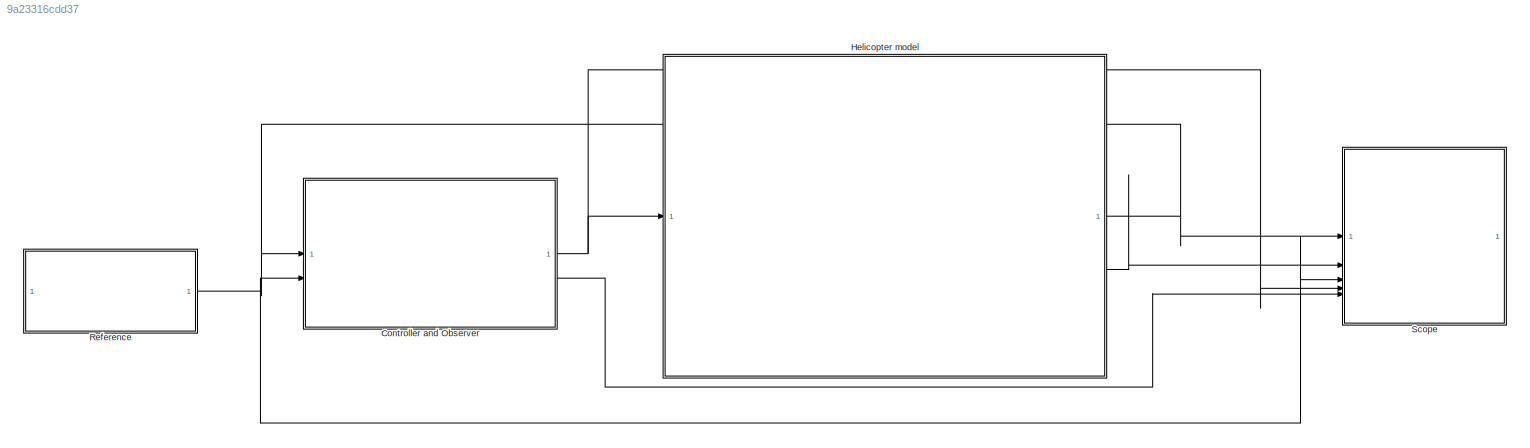
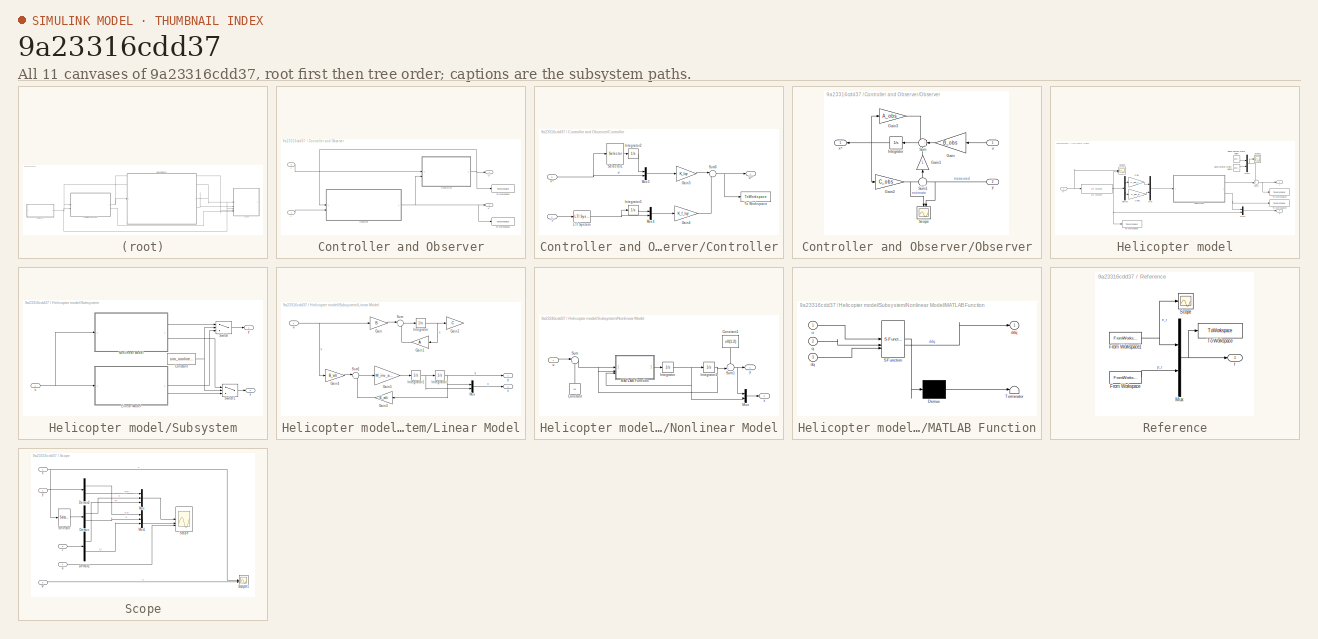
[diagram: thumbnail index - all 11 canvases of the model, root first then tree order]
MODEL slx_9a23316cdd37
KIND model
CONFIG AbsTol = auto
CONFIG EnableMultiTasking = off
CONFIG FixedStep = auto
CONFIG MaxStep = 0.01
CONFIG MinStep = auto
CONFIG RelTol = 1e-5
CONFIG SampleTimeConstraint = Unconstrained
CONFIG SolverName = VariableStepAuto
CONFIG StartTime = 0.0
CONFIG StopTime = 20
BLOCK [SubSystem] Controller and Observer
BLOCK [SubSystem] Controller and Observer/Controller
BLOCK [Gain] Controller and Observer/Controller/Gain3
  Gain = K_lqr
  Multiplication = Matrix(K*u)
BLOCK [Gain] Controller and Observer/Controller/Gain4
  Gain = K_f_lqr
  Multiplication = Matrix(K*u)
BLOCK [Integrator] Controller and Observer/Controller/Integrator2
BLOCK [Integrator] Controller and Observer/Controller/Integrator3
BLOCK [Reference] Controller and Observer/Controller/LTI System  REF=cstblocks/LTI System
  SourceBlock = cstblocks/LTI System
  SourceType = LTI Block
BLOCK [Mux] Controller and Observer/Controller/Mux3
  DisplayOption = bar
  Inputs = 2
BLOCK [Mux] Controller and Observer/Controller/Mux4
  DisplayOption = bar
  Inputs = 2
BLOCK [Selector] Controller and Observer/Controller/Selector1
  IndexOptions = Index vector (dialog)
  Indices = [1 2]
  InputPortWidth = 6
  OutputSizes = 1
BLOCK [Sum] Controller and Observer/Controller/Sum3
  Inputs = |-+
BLOCK [ToWorkspace] Controller and Observer/Controller/To Workspace
  FixptAsFi = on
  MaxDataPoints = inf
  SampleTime = -1
  SaveFormat = Timeseries
  VariableName = u
BLOCK [Inport] Controller and Observer/Controller/r
BLOCK [Outport] Controller and Observer/Controller/u~
BLOCK [Inport] Controller and Observer/Controller/x^
  Port = 2
BLOCK [SubSystem] Controller and Observer/Observer
BLOCK [Gain] Controller and Observer/Observer/Gain
  Gain = B_obs
  Multiplication = Matrix(K*u)
  NameLocation = top
BLOCK [Gain] Controller and Observer/Observer/Gain1
  Gain = L
  Multiplication = Matrix(K*u)
  NameLocation = right
BLOCK [Gain] Controller and Observer/Observer/Gain2
  Gain = C_obs
  Multiplication = Matrix(K*u)
BLOCK [Gain] Controller and Observer/Observer/Gain3
  Gain = A_obs
  Multiplication = Matrix(K*u)
BLOCK [Integrator] Controller and Observer/Observer/Integrator
  NameLocation = top
BLOCK [Scope] Controller and Observer/Observer/Scope
  Floating = off
  NameLocation = left
  NumInputPorts = 2
  ScopeSpecificationString = Simulink.scopes.TimeScopeBlockCfg('CurrentConfiguration', extmgr.ConfigurationSet(extmgr.Configuration('Core','General UI',true),extmgr.Configuration('Core','Source UI',true),extmgr.Configuration('Sources','WiredSimulink',true,'DataLoggingVariableName','ScopeData1'),extmgr.Configuration('Visuals','Time Domain',true,'SerializedDisplays',{struct('MinYLimReal','-0.13585','MaxYLimReal','1.19858','YLab...<+1696ch>
BLOCK [Sum] Controller and Observer/Observer/Sum
  Inputs = +++
  NameLocation = top
BLOCK [Sum] Controller and Observer/Observer/Sum1
  Inputs = -|+
  NameLocation = right
BLOCK [Inport] Controller and Observer/Observer/u
  NameLocation = top
BLOCK [Outport] Controller and Observer/Observer/x^
  NameLocation = top
BLOCK [Inport] Controller and Observer/Observer/y
  NameLocation = top
  Port = 2
BLOCK [ToWorkspace] Controller and Observer/To Workspace
  FixptAsFi = on
  MaxDataPoints = inf
  SampleTime = -1
  SaveFormat = Timeseries
  VariableName = u_input
BLOCK [ToWorkspace] Controller and Observer/To Workspace1
  FixptAsFi = on
  MaxDataPoints = inf
  SampleTime = -1
  SaveFormat = Timeseries
  VariableName = x_est
BLOCK [Inport] Controller and Observer/r
  Port = 2
BLOCK [Outport] Controller and Observer/u~
BLOCK [Outport] Controller and Observer/x^
  Port = 2
BLOCK [Inport] Controller and Observer/y
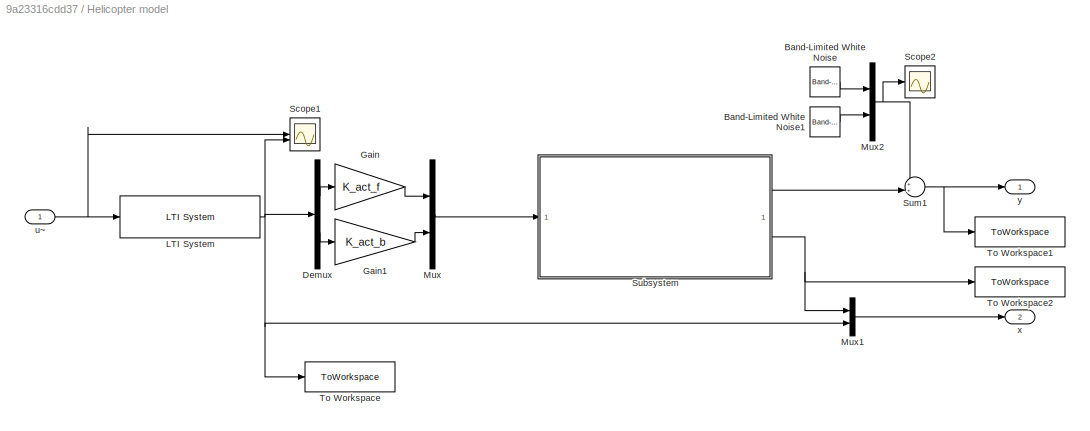
BLOCK [SubSystem] Helicopter model
BLOCK [Reference] Helicopter model/Band-Limited White Noise  REF=simulink/Sources/Band-Limited
White Noise
  SourceBlock = simulink/Sources/Band-Limited\nWhite Noise
  SourceType = Band-Limited White Noise.
BLOCK [Reference] Helicopter model/Band-Limited White Noise1  REF=simulink/Sources/Band-Limited
White Noise
  SourceBlock = simulink/Sources/Band-Limited\nWhite Noise
  SourceType = Band-Limited White Noise.
BLOCK [Demux] Helicopter model/Demux
  Outputs = 2
BLOCK [Gain] Helicopter model/Gain
  Gain = K_act_f
BLOCK [Gain] Helicopter model/Gain1
  Gain = K_act_b
BLOCK [Reference] Helicopter model/LTI System  REF=cstblocks/LTI System
  SourceBlock = cstblocks/LTI System
  SourceType = LTI Block
BLOCK [Mux] Helicopter model/Mux
  DisplayOption = bar
  Inputs = 2
BLOCK [Mux] Helicopter model/Mux1
  DisplayOption = bar
  Inputs = 2
BLOCK [Mux] Helicopter model/Mux2
  DisplayOption = bar
  Inputs = 2
BLOCK [Scope] Helicopter model/Scope1
  Floating = off
  NumInputPorts = 2
  ScopeSpecificationString = Simulink.scopes.TimeScopeBlockCfg('CurrentConfiguration', extmgr.ConfigurationSet(extmgr.Configuration('Core','General UI',true),extmgr.Configuration('Core','Source UI',true),extmgr.Configuration('Sources','WiredSimulink',true,'DataLoggingVariableName','ScopeData2'),extmgr.Configuration('Visuals','Time Domain',true,'SerializedDisplays',{struct('MinYLimReal','-38.56259','MaxYLimReal','41.24382','YL...<+1527ch>
BLOCK [Scope] Helicopter model/Scope2
  Floating = off
  NumInputPorts = 1
  ScopeSpecificationString = Simulink.scopes.TimeScopeBlockCfg('CurrentConfiguration', extmgr.ConfigurationSet(extmgr.Configuration('Core','General UI',true),extmgr.Configuration('Core','Source UI',true),extmgr.Configuration('Sources','WiredSimulink',true,'DataLoggingVariableName','ScopeData4'),extmgr.Configuration('Visuals','Time Domain',true,'SerializedDisplays',{struct('MinYLimReal','-0.15167','MaxYLimReal','0.15543','YLab...<+1508ch>
BLOCK [SubSystem] Helicopter model/Subsystem
BLOCK [Constant] Helicopter model/Subsystem/Constant
  Value = sim_nonlinear
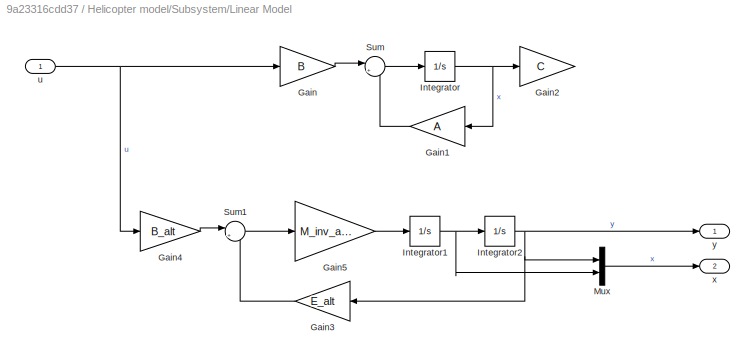
BLOCK [SubSystem] Helicopter model/Subsystem/Linear Model
BLOCK [Gain] Helicopter model/Subsystem/Linear Model/Gain
  Commented = on
  Gain = B
  Multiplication = Matrix(K*u)
BLOCK [Gain] Helicopter model/Subsystem/Linear Model/Gain1
  Commented = on
  Gain = A
  Multiplication = Matrix(K*u)
  NameLocation = top
BLOCK [Gain] Helicopter model/Subsystem/Linear Model/Gain2
  Commented = on
  Gain = C
  Multiplication = Matrix(K*u)
BLOCK [Gain] Helicopter model/Subsystem/Linear Model/Gain3
  Gain = E_alt
  Multiplication = Matrix(K*u)
  NameLocation = top
BLOCK [Gain] Helicopter model/Subsystem/Linear Model/Gain4
  Gain = B_alt
  Multiplication = Matrix(K*u)
BLOCK [Gain] Helicopter model/Subsystem/Linear Model/Gain5
  Gain = M_inv_alt
  Multiplication = Matrix(K*u)
BLOCK [Integrator] Helicopter model/Subsystem/Linear Model/Integrator
  Commented = on
BLOCK [Integrator] Helicopter model/Subsystem/Linear Model/Integrator1
BLOCK [Integrator] Helicopter model/Subsystem/Linear Model/Integrator2
BLOCK [Mux] Helicopter model/Subsystem/Linear Model/Mux
  DisplayOption = bar
  Inputs = 2
BLOCK [Sum] Helicopter model/Subsystem/Linear Model/Sum
  Commented = on
  Inputs = |++
BLOCK [Sum] Helicopter model/Subsystem/Linear Model/Sum1
  Inputs = |++
BLOCK [Inport] Helicopter model/Subsystem/Linear Model/u
BLOCK [Outport] Helicopter model/Subsystem/Linear Model/x
  Port = 2
BLOCK [Outport] Helicopter model/Subsystem/Linear Model/y
BLOCK [SubSystem] Helicopter model/Subsystem/Nonlinear Model
BLOCK [Constant] Helicopter model/Subsystem/Nonlinear Model/Constant
  NameLocation = right
  Value = u0
BLOCK [Constant] Helicopter model/Subsystem/Nonlinear Model/Constant1
  NameLocation = left
  Value = x0(1:2)
BLOCK [Integrator] Helicopter model/Subsystem/Nonlinear Model/Integrator
BLOCK [Integrator] Helicopter model/Subsystem/Nonlinear Model/Integrator1
  InitialCondition = x0(1:2)
BLOCK [SubSystem] Helicopter model/Subsystem/Nonlinear Model/MATLAB Function
  ErrorFcn = Stateflow.Translate.translate
  PermitHierarchicalResolution = ExplicitOnly
  SFBlockType = MATLAB Function
  TreatAsAtomicUnit = on
BLOCK [Demux] Helicopter model/Subsystem/Nonlinear Model/MATLAB Function/ Demux 
  Outputs = 1
BLOCK [S-Function] Helicopter model/Subsystem/Nonlinear Model/MATLAB Function/ SFunction 
  EnableBusSupport = on
  FunctionName = sf_sfun
  PortCounts = [3 2]
  SFcnIsStateOwnerBlock = off
  SFunctionDeploymentMode = off
  Tag = Stateflow S-Function 2
BLOCK [Terminator] Helicopter model/Subsystem/Nonlinear Model/MATLAB Function/ Terminator 
BLOCK [Outport] Helicopter model/Subsystem/Nonlinear Model/MATLAB Function/ddq
BLOCK [Inport] Helicopter model/Subsystem/Nonlinear Model/MATLAB Function/dq
  Port = 3
BLOCK [Inport] Helicopter model/Subsystem/Nonlinear Model/MATLAB Function/q
  Port = 2
BLOCK [Inport] Helicopter model/Subsystem/Nonlinear Model/MATLAB Function/u
BLOCK [Mux] Helicopter model/Subsystem/Nonlinear Model/Mux
  DisplayOption = bar
  Inputs = 2
BLOCK [Sum] Helicopter model/Subsystem/Nonlinear Model/Sum
  Inputs = |++
BLOCK [Sum] Helicopter model/Subsystem/Nonlinear Model/Sum1
  Inputs = -+|
BLOCK [Inport] Helicopter model/Subsystem/Nonlinear Model/u
BLOCK [Outport] Helicopter model/Subsystem/Nonlinear Model/x
  Port = 2
BLOCK [Outport] Helicopter model/Subsystem/Nonlinear Model/y
BLOCK [Switch] Helicopter model/Subsystem/Switch
  Criteria = u2 > Threshold
  InputSameDT = off
  SaturateOnIntegerOverflow = off
BLOCK [Switch] Helicopter model/Subsystem/Switch1
  Criteria = u2 > Threshold
  InputSameDT = off
  SaturateOnIntegerOverflow = off
BLOCK [Inport] Helicopter model/Subsystem/u
BLOCK [Outport] Helicopter model/Subsystem/x
  Port = 2
BLOCK [Outport] Helicopter model/Subsystem/y
BLOCK [Sum] Helicopter model/Sum1
  Inputs = ++|
BLOCK [ToWorkspace] Helicopter model/To Workspace
  FixptAsFi = on
  MaxDataPoints = inf
  SampleTime = -1
  SaveFormat = Timeseries
  VariableName = u_state
BLOCK [ToWorkspace] Helicopter model/To Workspace1
  FixptAsFi = on
  MaxDataPoints = inf
  SampleTime = -1
  SaveFormat = Timeseries
  VariableName = y
BLOCK [ToWorkspace] Helicopter model/To Workspace2
  FixptAsFi = on
  MaxDataPoints = inf
  SampleTime = -1
  SaveFormat = Timeseries
  VariableName = x_drone
BLOCK [Inport] Helicopter model/u~
BLOCK [Outport] Helicopter model/x
  Port = 2
BLOCK [Outport] Helicopter model/y
BLOCK [SubSystem] Reference
BLOCK [FromWorkspace] Reference/From Workspace
  VariableName = p_timeseries
BLOCK [FromWorkspace] Reference/From Workspace1
  VariableName = e_timeseries
BLOCK [Mux] Reference/Mux
  DisplayOption = bar
  Inputs = 2
BLOCK [Scope] Reference/Scope
  Floating = off
  NumInputPorts = 1
  ScopeSpecificationString = Simulink.scopes.TimeScopeBlockCfg('CurrentConfiguration', extmgr.ConfigurationSet(extmgr.Configuration('Core','General UI',true),extmgr.Configuration('Core','Source UI',true),extmgr.Configuration('Sources','WiredSimulink',true,'DataLoggingVariableName','ScopeData1'),extmgr.Configuration('Visuals','Time Domain',true,'SerializedDisplays',{struct('MinYLimReal','-1.00000','MaxYLimReal','1.00000','YLab...<+1392ch>
BLOCK [ToWorkspace] Reference/To Workspace
  FixptAsFi = on
  MaxDataPoints = inf
  SampleTime = -1
  SaveFormat = Timeseries
  VariableName = r
BLOCK [Outport] Reference/r
BLOCK [SubSystem] Scope
BLOCK [Demux] Scope/Demux
  Outputs = 2
BLOCK [Demux] Scope/Demux1
  Outputs = 2
BLOCK [Demux] Scope/Demux2
  Outputs = 2
BLOCK [Mux] Scope/Mux
  DisplayOption = bar
  Inputs = 3
BLOCK [Mux] Scope/Mux1
  DisplayOption = bar
  Inputs = 3
BLOCK [Scope] Scope/Scope
  Floating = off
  NumInputPorts = 3
  ScopeSpecificationString = Simulink.scopes.TimeScopeBlockCfg('CurrentConfiguration', extmgr.ConfigurationSet(extmgr.Configuration('Core','General UI',true),extmgr.Configuration('Core','Source UI',true),extmgr.Configuration('Sources','WiredSimulink',true),extmgr.Configuration('Visuals','Time Domain',true,'SerializedDisplays',{struct('MinYLimReal','-0.23094','MaxYLimReal','1.38001','YLabelReal','','MinYLimMag','0.00000','MaxY...<+3496ch>
BLOCK [Scope] Scope/Scope1
  Floating = off
  NumInputPorts = 2
  ScopeSpecificationString = Simulink.scopes.TimeScopeBlockCfg('CurrentConfiguration', extmgr.ConfigurationSet(extmgr.Configuration('Core','General UI',true),extmgr.Configuration('Core','Source UI',true),extmgr.Configuration('Sources','WiredSimulink',true,'DataLoggingVariableName','ScopeData3'),extmgr.Configuration('Visuals','Time Domain',true,'SerializedDisplays',{struct('MinYLimReal','-7.32871','MaxYLimReal','12.25849','YLa...<+1777ch>
BLOCK [Selector] Scope/Selector
  IndexOptions = Index vector (dialog)
  Indices = [1 2]
  InputPortWidth = 6
  OutputSizes = 1
BLOCK [Inport] Scope/r
  Port = 3
BLOCK [Inport] Scope/u
  Port = 4
BLOCK [Inport] Scope/x
  Port = 2
BLOCK [Inport] Scope/x^
  Port = 5
BLOCK [Inport] Scope/y
LINE Controller and Observer/Controller/Gain3:1 -> Controller and Observer/Controller/Sum3:1
LINE Controller and Observer/Controller/Gain4:1 -> Controller and Observer/Controller/Sum3:2
LINE Controller and Observer/Controller/Integrator2:1 -> Controller and Observer/Controller/Mux3:1
LINE Controller and Observer/Controller/Integrator3:1 -> Controller and Observer/Controller/Mux4:1
NET Controller and Observer/Controller/LTI System:1 -> Controller and Observer/Controller/Integrator3:1, Controller and Observer/Controller/Mux4:2
LINE Controller and Observer/Controller/Mux3:1 -> Controller and Observer/Controller/Gain3:1
LINE Controller and Observer/Controller/Mux4:1 -> Controller and Observer/Controller/Gain4:1
LINE Controller and Observer/Controller/Selector1:1 -> Controller and Observer/Controller/Integrator2:1
NET Controller and Observer/Controller/Sum3:1 -> Controller and Observer/Controller/To Workspace:1, Controller and Observer/Controller/u~:1
LINE Controller and Observer/Controller/r:1 -> Controller and Observer/Controller/LTI System:1
NET Controller and Observer/Controller/x^:1 -> Controller and Observer/Controller/Mux3:2, Controller and Observer/Controller/Selector1:1
NET Controller and Observer/Controller:1 -> Controller and Observer/Observer:1, Controller and Observer/To Workspace:1, Controller and Observer/u~:1
LINE Controller and Observer/Observer/Gain1:1 -> Controller and Observer/Observer/Sum:3
NET Controller and Observer/Observer/Gain2:1 -> Controller and Observer/Observer/Scope:1, Controller and Observer/Observer/Sum1:1
LINE Controller and Observer/Observer/Gain3:1 -> Controller and Observer/Observer/Sum:1
LINE Controller and Observer/Observer/Gain:1 -> Controller and Observer/Observer/Sum:2
NET Controller and Observer/Observer/Integrator:1 -> Controller and Observer/Observer/Gain2:1, Controller and Observer/Observer/Gain3:1, Controller and Observer/Observer/x^:1
LINE Controller and Observer/Observer/Sum1:1 -> Controller and Observer/Observer/Gain1:1
LINE Controller and Observer/Observer/Sum:1 -> Controller and Observer/Observer/Integrator:1
LINE Controller and Observer/Observer/u:1 -> Controller and Observer/Observer/Gain:1
NET Controller and Observer/Observer/y:1 -> Controller and Observer/Observer/Scope:2, Controller and Observer/Observer/Sum1:2
NET Controller and Observer/Observer:1 -> Controller and Observer/Controller:2, Controller and Observer/To Workspace1:1, Controller and Observer/x^:1
LINE Controller and Observer/r:1 -> Controller and Observer/Controller:1
LINE Controller and Observer/y:1 -> Controller and Observer/Observer:2
NET Controller and Observer:1 -> Helicopter model:1, Scope:4
LINE Controller and Observer:2 -> Scope:5
LINE Helicopter model/Band-Limited White Noise1:1 -> Helicopter model/Mux2:2
LINE Helicopter model/Band-Limited White Noise:1 -> Helicopter model/Mux2:1
LINE Helicopter model/Demux:1 -> Helicopter model/Gain:1
LINE Helicopter model/Demux:2 -> Helicopter model/Gain1:1
LINE Helicopter model/Gain1:1 -> Helicopter model/Mux:2
LINE Helicopter model/Gain:1 -> Helicopter model/Mux:1
NET Helicopter model/LTI System:1 -> Helicopter model/Demux:1, Helicopter model/Mux1:2, Helicopter model/Scope1:2, Helicopter model/To Workspace:1
LINE Helicopter model/Mux1:1 -> Helicopter model/x:1
NET Helicopter model/Mux2:1 -> Helicopter model/Scope2:1, Helicopter model/Sum1:1
LINE Helicopter model/Mux:1 -> Helicopter model/Subsystem:1
NET Helicopter model/Subsystem/Constant:1 -> Helicopter model/Subsystem/Switch1:2, Helicopter model/Subsystem/Switch:2
LINE Helicopter model/Subsystem/Linear Model/Gain1:1 -> Helicopter model/Subsystem/Linear Model/Sum:2
LINE Helicopter model/Subsystem/Linear Model/Gain3:1 -> Helicopter model/Subsystem/Linear Model/Sum1:2
LINE Helicopter model/Subsystem/Linear Model/Gain4:1 -> Helicopter model/Subsystem/Linear Model/Sum1:1
LINE Helicopter model/Subsystem/Linear Model/Gain5:1 -> Helicopter model/Subsystem/Linear Model/Integrator1:1
LINE Helicopter model/Subsystem/Linear Model/Gain:1 -> Helicopter model/Subsystem/Linear Model/Sum:1
NET Helicopter model/Subsystem/Linear Model/Integrator1:1 -> Helicopter model/Subsystem/Linear Model/Integrator2:1, Helicopter model/Subsystem/Linear Model/Mux:2
NET Helicopter model/Subsystem/Linear Model/Integrator2:1 -> Helicopter model/Subsystem/Linear Model/Gain3:1, Helicopter model/Subsystem/Linear Model/Mux:1, Helicopter model/Subsystem/Linear Model/y:1
NET Helicopter model/Subsystem/Linear Model/Integrator:1 -> Helicopter model/Subsystem/Linear Model/Gain1:1, Helicopter model/Subsystem/Linear Model/Gain2:1
LINE Helicopter model/Subsystem/Linear Model/Mux:1 -> Helicopter model/Subsystem/Linear Model/x:1
LINE Helicopter model/Subsystem/Linear Model/Sum1:1 -> Helicopter model/Subsystem/Linear Model/Gain5:1
LINE Helicopter model/Subsystem/Linear Model/Sum:1 -> Helicopter model/Subsystem/Linear Model/Integrator:1
NET Helicopter model/Subsystem/Linear Model/u:1 -> Helicopter model/Subsystem/Linear Model/Gain4:1, Helicopter model/Subsystem/Linear Model/Gain:1
LINE Helicopter model/Subsystem/Linear Model:1 -> Helicopter model/Subsystem/Switch:3
LINE Helicopter model/Subsystem/Linear Model:2 -> Helicopter model/Subsystem/Switch1:3
LINE Helicopter model/Subsystem/Nonlinear Model/Constant1:1 -> Helicopter model/Subsystem/Nonlinear Model/Sum1:1
LINE Helicopter model/Subsystem/Nonlinear Model/Constant:1 -> Helicopter model/Subsystem/Nonlinear Model/Sum:2
NET Helicopter model/Subsystem/Nonlinear Model/Integrator1:1 -> Helicopter model/Subsystem/Nonlinear Model/MATLAB Function:2, Helicopter model/Subsystem/Nonlinear Model/Sum1:2
NET Helicopter model/Subsystem/Nonlinear Model/Integrator:1 -> Helicopter model/Subsystem/Nonlinear Model/Integrator1:1, Helicopter model/Subsystem/Nonlinear Model/MATLAB Function:3, Helicopter model/Subsystem/Nonlinear Model/Mux:2
LINE Helicopter model/Subsystem/Nonlinear Model/MATLAB Function:1 -> Helicopter model/Subsystem/Nonlinear Model/Integrator:1
LINE Helicopter model/Subsystem/Nonlinear Model/Mux:1 -> Helicopter model/Subsystem/Nonlinear Model/x:1
NET Helicopter model/Subsystem/Nonlinear Model/Sum1:1 -> Helicopter model/Subsystem/Nonlinear Model/Mux:1, Helicopter model/Subsystem/Nonlinear Model/y:1
LINE Helicopter model/Subsystem/Nonlinear Model/Sum:1 -> Helicopter model/Subsystem/Nonlinear Model/MATLAB Function:1
LINE Helicopter model/Subsystem/Nonlinear Model/u:1 -> Helicopter model/Subsystem/Nonlinear Model/Sum:1
LINE Helicopter model/Subsystem/Nonlinear Model:1 -> Helicopter model/Subsystem/Switch:1
LINE Helicopter model/Subsystem/Nonlinear Model:2 -> Helicopter model/Subsystem/Switch1:1
LINE Helicopter model/Subsystem/Switch1:1 -> Helicopter model/Subsystem/x:1
LINE Helicopter model/Subsystem/Switch:1 -> Helicopter model/Subsystem/y:1
NET Helicopter model/Subsystem/u:1 -> Helicopter model/Subsystem/Linear Model:1, Helicopter model/Subsystem/Nonlinear Model:1
LINE Helicopter model/Subsystem:1 -> Helicopter model/Sum1:2
NET Helicopter model/Subsystem:2 -> Helicopter model/Mux1:1, Helicopter model/To Workspace2:1
NET Helicopter model/Sum1:1 -> Helicopter model/To Workspace1:1, Helicopter model/y:1
NET Helicopter model/u~:1 -> Helicopter model/LTI System:1, Helicopter model/Scope1:1
NET Helicopter model:1 -> Controller and Observer:1, Scope:1
LINE Helicopter model:2 -> Scope:2
NET Reference/From Workspace1:1 -> Reference/Mux:1, Reference/Scope:1
LINE Reference/From Workspace:1 -> Reference/Mux:2
NET Reference/Mux:1 -> Reference/To Workspace:1, Reference/r:1
NET Reference:1 -> Controller and Observer:2, Scope:3
LINE Scope/Demux1:1 -> Scope/Mux:3
LINE Scope/Demux1:2 -> Scope/Mux1:3
LINE Scope/Demux2:1 -> Scope/Mux:1
LINE Scope/Demux2:2 -> Scope/Mux1:1
LINE Scope/Demux:1 -> Scope/Mux:2
LINE Scope/Demux:2 -> Scope/Mux1:2
LINE Scope/Mux1:1 -> Scope/Scope:2
LINE Scope/Mux:1 -> Scope/Scope:1
LINE Scope/Selector:1 -> Scope/Demux:1
LINE Scope/r:1 -> Scope/Demux1:1
LINE Scope/u:1 -> Scope/Scope:3
NET Scope/x:1 -> Scope/Scope1:1, Scope/Selector:1
LINE Scope/x^:1 -> Scope/Scope1:2
LINE Scope/y:1 -> Scope/Demux2:1
note: NET lines group one-source signal fan-out (src -> all destinations, sorted); 1:1 wires keep LINE
CHART Helicopter model/Subsystem/Nonlinear Model/MATLAB Function states=1 transitions=1
  STATE_LABEL 'eML_blk_kernel()'
  STATE_LABEL 'SCRIPT:\nfunction ddq = rigid_body_dyn(u, q, dq)\n    M = M_fun(q);\n    b = b_fun(q, dq);\n    g = g_fun(q);\n    tau = tau_fun(q, u);\n\n    lam = 0*0.01;\n    ddq = (M + lam*eye(size(q, 1)))\\(-b-g+tau);\nend\n'
CHART  states=0 transitions=0
